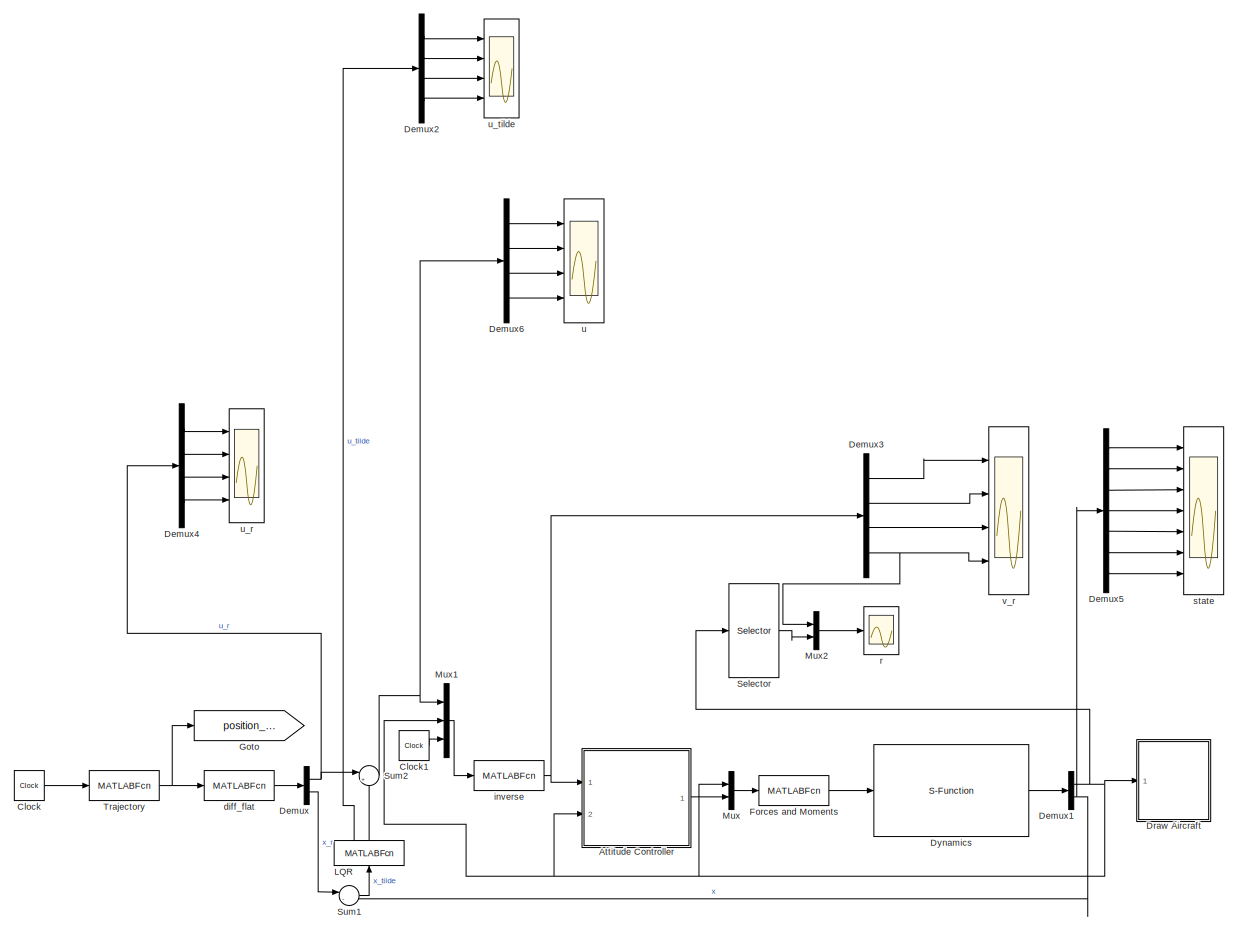
[diagram: root canvas - part 1/1, most of the canvas]
MODEL slx_b024705961bd
KIND model
CONFIG AbsTol = auto
CONFIG FixedStep = 0.001
CONFIG MaxStep = auto
CONFIG MinStep = auto
CONFIG RelTol = 1e-3
CONFIG SampleTimeConstraint = Unconstrained
CONFIG Solver = ode45
CONFIG SolverMode = Auto
CONFIG SolverName = ode45
CONFIG StartTime = 0.0
CONFIG StopTime = inf
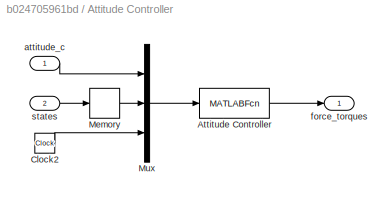
BLOCK [SubSystem] Attitude Controller
  Ports = [2, 1]
  RequestExecContextInheritance = off
BLOCK [MATLABFcn] Attitude Controller/Attitude Controller
  MATLABFcn = attitude_controller(u,P)
  OutputDimensions = 4
  Ports = [1, 1]
  SampleTime = 0.002
BLOCK [Clock] Attitude Controller/Clock2
BLOCK [Memory] Attitude Controller/Memory
BLOCK [Mux] Attitude Controller/Mux
  DisplayOption = bar
  Inputs = 3
  Ports = [3, 1]
BLOCK [Inport] Attitude Controller/attitude_c
  IconDisplay = Port number
BLOCK [Outport] Attitude Controller/force_torques
  IconDisplay = Port number
BLOCK [Inport] Attitude Controller/states
  IconDisplay = Port number
  Port = 2
BLOCK [Clock] Clock
  DisplayTime = on
BLOCK [Clock] Clock1
  DisplayTime = on
BLOCK [Demux] Demux
  DisplayOption = bar
  Outputs = [4 7]
  Ports = [1, 2]
BLOCK [Demux] Demux1
  DisplayOption = bar
  Outputs = [12 7]
  Ports = [1, 2]
BLOCK [Demux] Demux2
  DisplayOption = bar
  Ports = [1, 4]
BLOCK [Demux] Demux3
  DisplayOption = bar
  Ports = [1, 4]
BLOCK [Demux] Demux4
  DisplayOption = bar
  Ports = [1, 4]
BLOCK [Demux] Demux5
  DisplayOption = bar
  Outputs = 7
  Ports = [1, 7]
BLOCK [Demux] Demux6
  DisplayOption = bar
  Ports = [1, 4]
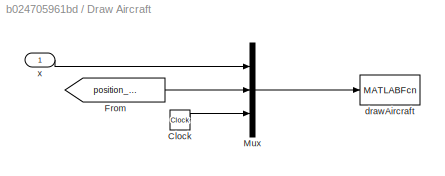
BLOCK [SubSystem] Draw Aircraft
  Ports = [1]
  RequestExecContextInheritance = off
BLOCK [Clock] Draw Aircraft/Clock
BLOCK [From] Draw Aircraft/From
  GotoTag = position_desired
  TagVisibility = global
BLOCK [Mux] Draw Aircraft/Mux
  DisplayOption = bar
  Inputs = 3
  Ports = [3, 1]
BLOCK [MATLABFcn] Draw Aircraft/drawAircraft
  MATLABFcn = drawAircraft(u,V,F,colors)
  OutputDimensions = 0
  Ports = [1]
  SampleTime = 0.1
BLOCK [Inport] Draw Aircraft/x
  IconDisplay = Port number
BLOCK [S-Function] Dynamics
  FunctionName = quad_dynamics
  Parameters = P
  Ports = [1, 1]
BLOCK [MATLABFcn] Forces and Moments
  MATLABFcn = forces_moments(u,P)
  OutputDimensions = 4
  Ports = [1, 1]
BLOCK [Goto] Goto
  GotoTag = position_desired
  TagVisibility = global
BLOCK [MATLABFcn] LQR
  MATLABFcn = lqr_controller(u,P)
  OutputDimensions = 4
  Ports = [1, 1]
BLOCK [Mux] Mux
  DisplayOption = bar
  Inputs = 2
  Ports = [2, 1]
BLOCK [Mux] Mux1
  DisplayOption = bar
  Inputs = 3
  Ports = [3, 1]
BLOCK [Mux] Mux2
  DisplayOption = bar
  Inputs = 2
  Ports = [2, 1]
BLOCK [Selector] Selector
  Indices = [12]
  InputPortWidth = 12
  Ports = [1, 1]
BLOCK [Sum] Sum1
  IconShape = round
  InputSameDT = off
  Inputs = |-+
  OutDataTypeStr = Inherit: Inherit via internal rule
  Ports = [2, 1]
  SaturateOnIntegerOverflow = off
BLOCK [Sum] Sum2
  IconShape = round
  InputSameDT = off
  Inputs = |++
  OutDataTypeStr = Inherit: Inherit via internal rule
  Ports = [2, 1]
  SaturateOnIntegerOverflow = off
BLOCK [MATLABFcn] Trajectory
  MATLABFcn = trajectory(u,P)
  OutputDimensions = 11
  Ports = [1, 1]
BLOCK [MATLABFcn] diff_flat
  MATLABFcn = diff_flat(u,P)
  OutputDimensions = 11
  Ports = [1, 1]
BLOCK [MATLABFcn] inverse
  MATLABFcn = inverse(u,P)
  OutputDimensions = 4
  Ports = [1, 1]
BLOCK [Scope] r
  Floating = off
  NumInputPorts = 1
  Ports = [1]
  SaveName = ScopeData3
  TimeRange = 1.839020215818323
  YMax = 5e-27
  YMin = -4.25e-26
BLOCK [Scope] state
  Floating = off
  NumInputPorts = 7
  Ports = [7]
  SaveName = ScopeData2
  TimeRange = 9.998000000000001
  YMax = 1~1~3~1~1~0.5~1
  YMin = -1~-1~0~-1~-1~-0.5~-1
  ZoomMode = yonly
BLOCK [Scope] u
  Floating = off
  NumInputPorts = 4
  Ports = [4]
  SaveName = ScopeData6
  YMax = 1~-6.625e-15~9.862~4.9625e-16
  YMin = -1~-6.775e-15~9.853~4.9375e-16
BLOCK [Scope] u_r
  Floating = off
  NumInputPorts = 4
  Ports = [4]
  SaveName = ScopeData1
  YMax = 1~1~-9.81~1
  YMin = -1~-1~-9.81~-1
BLOCK [Scope] u_tilde
  Floating = off
  NumInputPorts = 4
  Ports = [4]
  SaveName = ScopeData4
  YMax = 1~1.5e-21~1.1e-07~-7.5e-24
  YMin = -1~4e-22~2e-08~-3.5e-23
BLOCK [Scope] v_r
  Floating = off
  NumInputPorts = 4
  Ports = [4]
  TimeRange = 1.839020215818323
  YMax = 37.373~2.5e-13~1~1
  YMin = 37.3725~-3.5e-13~-1~-1
LINE Attitude Controller/Attitude Controller:1 -> Attitude Controller/force_torques:1
LINE Attitude Controller/Clock2:1 -> Attitude Controller/Mux:3
LINE Attitude Controller/Memory:1 -> Attitude Controller/Mux:2
LINE Attitude Controller/Mux:1 -> Attitude Controller/Attitude Controller:1
LINE Attitude Controller/attitude_c:1 -> Attitude Controller/Mux:1
LINE Attitude Controller/states:1 -> Attitude Controller/Memory:1
LINE Attitude Controller:1 -> Mux:2
LINE Clock1:1 -> Mux1:3
LINE Clock:1 -> Trajectory:1
NET Demux1:1 -> Attitude Controller:2, Draw Aircraft:1, Mux1:2, Mux:1, Selector:1
NET Demux1:2 -> Demux5:1, Sum1:2
LINE Demux2:1 -> u_tilde:1
LINE Demux2:2 -> u_tilde:2
LINE Demux2:3 -> u_tilde:3
LINE Demux2:4 -> u_tilde:4
LINE Demux3:1 -> v_r:1
LINE Demux3:2 -> v_r:2
LINE Demux3:3 -> v_r:3
NET Demux3:4 -> Mux2:1, v_r:4
LINE Demux4:1 -> u_r:1
LINE Demux4:2 -> u_r:2
LINE Demux4:3 -> u_r:3
LINE Demux4:4 -> u_r:4
LINE Demux5:1 -> state:1
LINE Demux5:2 -> state:2
LINE Demux5:3 -> state:3
LINE Demux5:4 -> state:4
LINE Demux5:5 -> state:5
LINE Demux5:6 -> state:6
LINE Demux5:7 -> state:7
LINE Demux6:1 -> u:1
LINE Demux6:2 -> u:2
LINE Demux6:3 -> u:3
LINE Demux6:4 -> u:4
NET Demux:1 -> Demux4:1, Sum2:1
LINE Demux:2 -> Sum1:1
LINE Draw Aircraft/Clock:1 -> Draw Aircraft/Mux:3
LINE Draw Aircraft/From:1 -> Draw Aircraft/Mux:2
LINE Draw Aircraft/Mux:1 -> Draw Aircraft/drawAircraft:1
LINE Draw Aircraft/x:1 -> Draw Aircraft/Mux:1
LINE Dynamics:1 -> Demux1:1
LINE Forces and Moments:1 -> Dynamics:1
NET LQR:1 -> Demux2:1, Sum2:2
LINE Mux1:1 -> inverse:1
LINE Mux2:1 -> r:1
LINE Mux:1 -> Forces and Moments:1
LINE Selector:1 -> Mux2:2
LINE Sum1:1 -> LQR:1
NET Sum2:1 -> Demux6:1, Mux1:1
NET Trajectory:1 -> Goto:1, diff_flat:1
LINE diff_flat:1 -> Demux:1
NET inverse:1 -> Attitude Controller:1, Demux3:1
note: NET lines group one-source signal fan-out (src -> all destinations, sorted); 1:1 wires keep LINE
